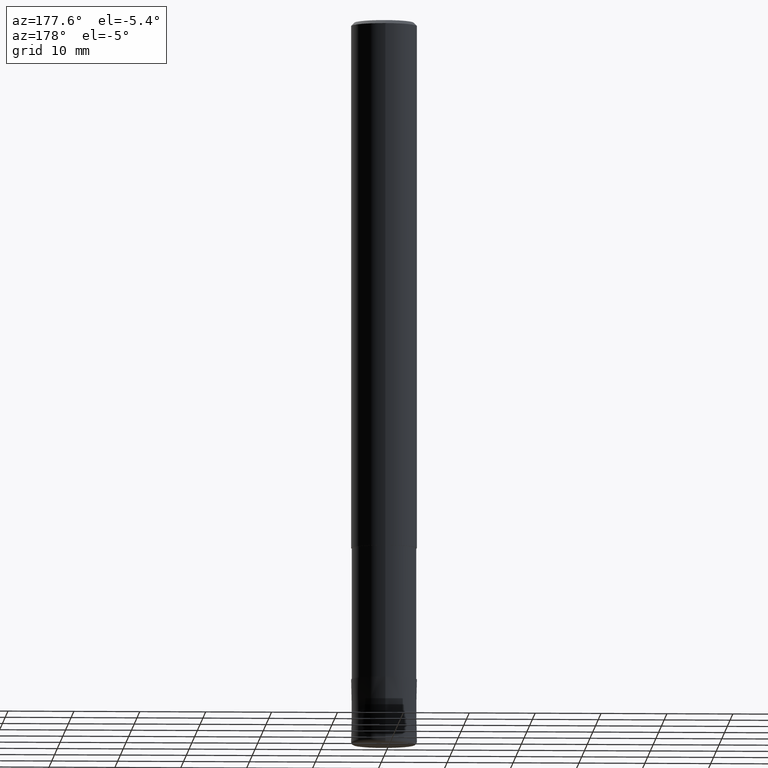
[diagram: clean part render]
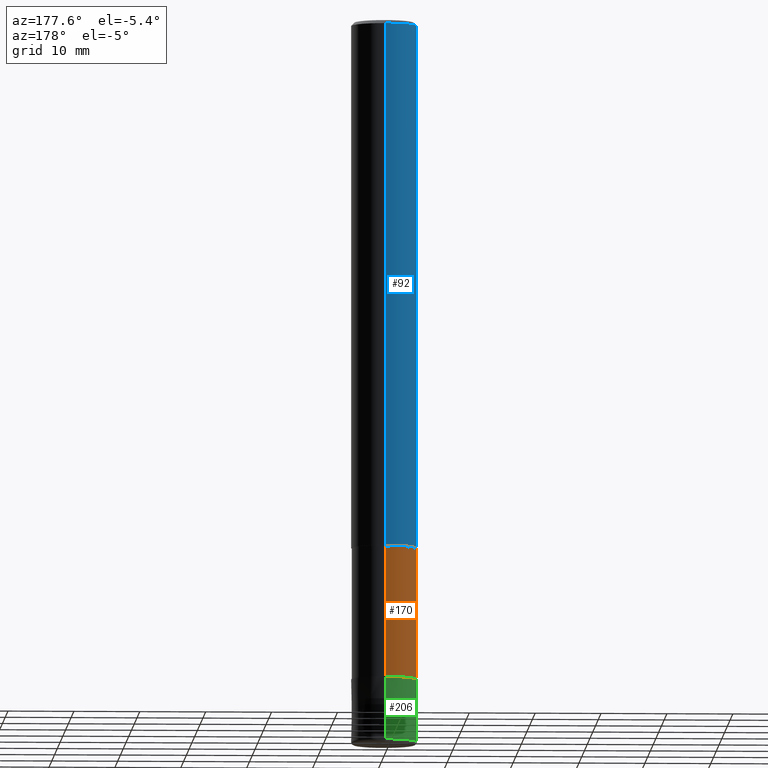
[diagram: same view with three faces highlighted in distinct colors, each labeled with its STEP entity id]
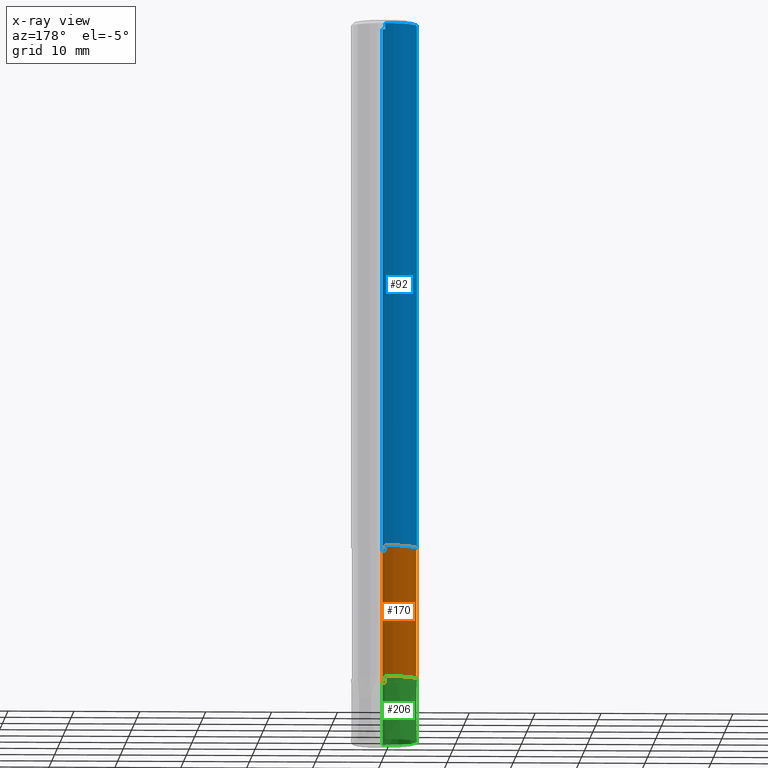
[diagram: x-ray of the same camera — body ghosted, the three highlighted faces saturated]
A machine part, auxiliary view with three faces highlighted in distinct colors.
The next image is the same camera in x-ray (body ghosted, the three faces saturated) — at least one of them is partly hidden behind the body in this view.
Their STEP definitions:

[orange] entity #170 — the highlighted cylindrical surface (edge-blend (fillet) strip) has radius 4.91 mm, axis along (-0, -0, 1).
#106=EDGE_CURVE('',#150,#132,#248,.T.);
#110=EDGE_CURVE('',#198,#148,#252,.T.);
#116=EDGE_CURVE('',#148,#150,#258,.T.);
#132=VERTEX_POINT('',#276);
#148=VERTEX_POINT('',#296);
#150=VERTEX_POINT('',#298);
#170=ADVANCED_FACE('',(#320),#321,.T.);
#198=VERTEX_POINT('',#350);
#200=EDGE_CURVE('',#198,#132,#352,.T.);
#248=LINE('',#398,#399);
#252=LINE('',#404,#405);
#258=CIRCLE('',#412,4.90995);
#276=CARTESIAN_POINT('',(0.0,4.90995,-100.0));
#296=CARTESIAN_POINT('',(6.01275596695018E-016,-4.90995,-80.0));
#298=CARTESIAN_POINT('',(0.0,4.90995,-80.0));
#320=FACE_OUTER_BOUND('',#485,.T.);
#321=CYLINDRICAL_SURFACE('',#486,4.90995);
#350=CARTESIAN_POINT('',(6.01275596695018E-016,-4.90995,-100.0));
#352=CIRCLE('',#527,4.90995);
#398=CARTESIAN_POINT('',(-6.01275596695018E-016,4.90995,-90.0));
#399=VECTOR('',#577,1.0);
#404=CARTESIAN_POINT('',(6.01275596695018E-016,-4.90995,-90.0));
#405=VECTOR('',#578,1.0);
#412=AXIS2_PLACEMENT_3D('',#583,#584,#585);
#485=EDGE_LOOP('',(#668,#669,#670,#671));
#486=AXIS2_PLACEMENT_3D('',#672,#673,#674);
#527=AXIS2_PLACEMENT_3D('',#699,#700,#701);
#577=DIRECTION('',(0.0,0.0,-1.0));
#578=DIRECTION('',(-0.0,-0.0,1.0));
#583=CARTESIAN_POINT('',(0.0,0.0,-80.0));
#584=DIRECTION('',(0.0,0.0,-1.0));
#585=DIRECTION('',(0.0,1.0,0.0));
#668=ORIENTED_EDGE('',*,*,#106,.T.);
#669=ORIENTED_EDGE('',*,*,#200,.F.);
#670=ORIENTED_EDGE('',*,*,#110,.T.);
#671=ORIENTED_EDGE('',*,*,#116,.T.);
#672=CARTESIAN_POINT('',(0.0,0.0,-90.0));
#673=DIRECTION('',(-0.0,-0.0,1.0));
#674=DIRECTION('',(0.0,1.0,0.0));
#699=CARTESIAN_POINT('',(0.0,0.0,-100.0));
#700=DIRECTION('',(0.0,0.0,-1.0));
#701=DIRECTION('',(0.0,1.0,0.0));

[blue] entity #92 — the highlighted cylindrical surface (edge-blend (fillet) strip) has radius 5 mm, axis along (-0, -0, 1).
#92=ADVANCED_FACE('',(#229),#230,.T.);
#146=EDGE_CURVE('',#174,#208,#294,.T.);
#174=VERTEX_POINT('',#325);
#178=VERTEX_POINT('',#329);
#188=EDGE_CURVE('',#174,#194,#340,.T.);
#194=VERTEX_POINT('',#346);
#196=EDGE_CURVE('',#178,#194,#348,.T.);
#202=EDGE_CURVE('',#208,#178,#354,.T.);
#208=VERTEX_POINT('',#361);
#229=FACE_OUTER_BOUND('',#374,.T.);
#230=CYLINDRICAL_SURFACE('',#375,5.0);
#294=LINE('',#453,#454);
#325=CARTESIAN_POINT('',(6.12303176911189E-016,-5.0,-80.0));
#329=CARTESIAN_POINT('',(0.0,5.0,-0.5));
#340=CIRCLE('',#510,5.0);
#346=CARTESIAN_POINT('',(0.0,5.0,-80.0));
#348=LINE('',#521,#522);
#354=CIRCLE('',#530,5.0);
#361=CARTESIAN_POINT('',(6.12303176911189E-016,-5.0,-0.5));
#374=EDGE_LOOP('',(#541,#542,#543,#544));
#375=AXIS2_PLACEMENT_3D('',#545,#546,#547);
#453=CARTESIAN_POINT('',(6.12303176911189E-016,-5.0,-40.25));
#454=VECTOR('',#640,1.0);
#510=AXIS2_PLACEMENT_3D('',#689,#690,#691);
#521=CARTESIAN_POINT('',(-6.12303176911189E-016,5.0,-40.25));
#522=VECTOR('',#698,1.0);
#530=AXIS2_PLACEMENT_3D('',#702,#703,#704);
#541=ORIENTED_EDGE('',*,*,#196,.T.);
#542=ORIENTED_EDGE('',*,*,#188,.F.);
#543=ORIENTED_EDGE('',*,*,#146,.T.);
#544=ORIENTED_EDGE('',*,*,#202,.T.);
#545=CARTESIAN_POINT('',(0.0,0.0,-40.25));
#546=DIRECTION('',(-0.0,-0.0,1.0));
#547=DIRECTION('',(0.0,1.0,0.0));
#640=DIRECTION('',(-0.0,-0.0,1.0));
#689=CARTESIAN_POINT('',(0.0,0.0,-80.0));
#690=DIRECTION('',(0.0,0.0,-1.0));
#691=DIRECTION('',(0.0,1.0,0.0));
#698=DIRECTION('',(0.0,0.0,-1.0));
#702=CARTESIAN_POINT('',(0.0,0.0,-0.5));
#703=DIRECTION('',(0.0,0.0,-1.0));
#704=DIRECTION('',(0.0,1.0,0.0));

[green] entity #206 — the highlighted conical surface has half-angle 0.001 deg.
#108=VERTEX_POINT('',#250);
#118=VERTEX_POINT('',#260);
#130=EDGE_CURVE('',#118,#142,#274,.T.);
#142=VERTEX_POINT('',#289);
#154=EDGE_CURVE('',#142,#108,#302,.T.);
#166=VERTEX_POINT('',#316);
#184=EDGE_CURVE('',#166,#118,#336,.T.);
#186=EDGE_CURVE('',#166,#108,#338,.T.);
#206=ADVANCED_FACE('',(#358),#359,.T.);
#250=CARTESIAN_POINT('',(0.0,5.0,-109.5));
#260=CARTESIAN_POINT('',(6.1229093084765E-016,-4.9999,-100.0));
#274=CIRCLE('',#431,4.9999);
#289=CARTESIAN_POINT('',(0.0,4.9999,-100.0));
#302=LINE('',#464,#465);
#316=CARTESIAN_POINT('',(6.12303176911189E-016,-5.0,-109.5));
#336=LINE('',#503,#504);
#338=CIRCLE('',#507,5.0);
#358=FACE_OUTER_BOUND('',#535,.T.);
#359=CONICAL_SURFACE('',#536,4.99995,1.05263157890604E-005);
#431=AXIS2_PLACEMENT_3D('',#608,#609,#610);
#464=CARTESIAN_POINT('',(-6.1229705387942E-016,4.99995,-104.75));
#465=VECTOR('',#644,1.0);
#503=CARTESIAN_POINT('',(6.1229705387942E-016,-4.99995,-104.75));
#504=VECTOR('',#685,1.0);
#507=AXIS2_PLACEMENT_3D('',#686,#687,#688);
#535=EDGE_LOOP('',(#709,#710,#711,#712));
#536=AXIS2_PLACEMENT_3D('',#713,#714,#715);
#608=CARTESIAN_POINT('',(0.0,0.0,-100.0));
#609=DIRECTION('',(0.0,0.0,-1.0));
#610=DIRECTION('',(0.0,1.0,0.0));
#644=DIRECTION('',(-1.28905931973861E-021,1.0526315788866E-005,-0.999999999944598));
#685=DIRECTION('',(-1.28905931973861E-021,1.0526315788866E-005,0.999999999944598));
#686=CARTESIAN_POINT('',(0.0,0.0,-109.5));
#687=DIRECTION('',(0.0,0.0,-1.0));
#688=DIRECTION('',(0.0,1.0,0.0));
#709=ORIENTED_EDGE('',*,*,#154,.T.);
#710=ORIENTED_EDGE('',*,*,#186,.F.);
#711=ORIENTED_EDGE('',*,*,#184,.T.);
#712=ORIENTED_EDGE('',*,*,#130,.T.);
#713=CARTESIAN_POINT('',(0.0,0.0,-104.75));
#714=DIRECTION('',(0.0,-0.0,-1.0));
#715=DIRECTION('',(0.0,1.0,0.0));